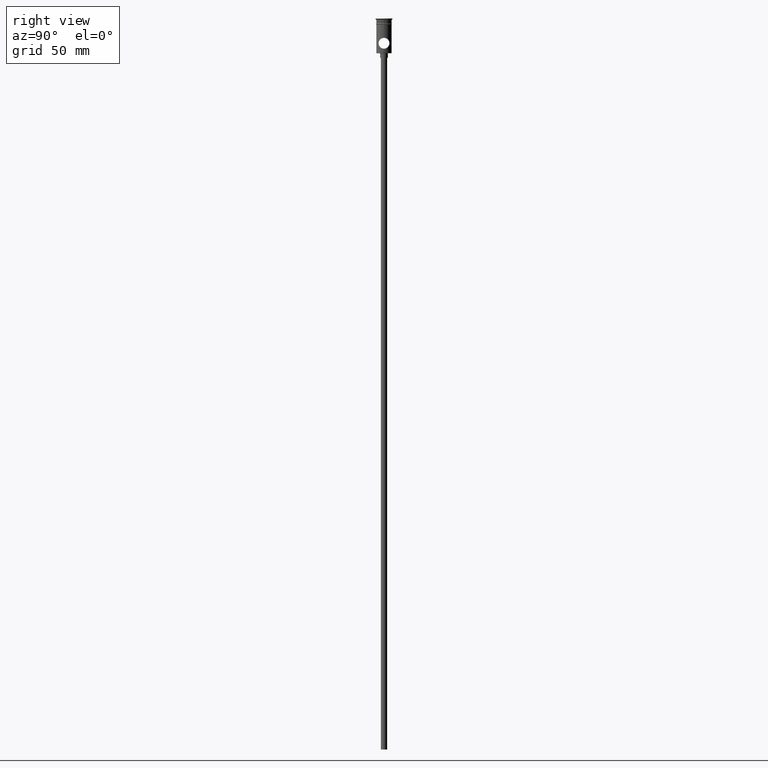
[diagram: clean part render]
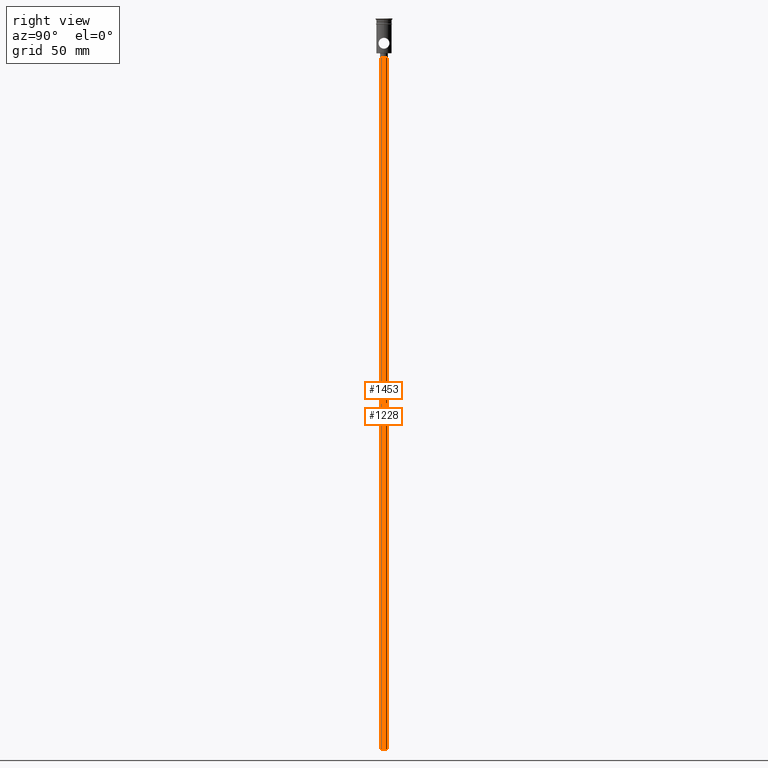
[diagram: same view with one multi-face feature highlighted, each face labeled with its STEP entity id]
A machine part, right view. The highlighted faces form ONE feature: a constant-radius fillet chain: 2 tangent blend faces with common blend radius 2 mm. The faces share edges in the B-rep.
Their STEP definitions:
[1] entity #1453 (Cylinder):
#8 = VERTEX_POINT ( 'NONE', #565 ) ;
#26 = VECTOR ( 'NONE', #1021, 1000.000000000000000 ) ;
#31 = VERTEX_POINT ( 'NONE', #1206 ) ;
#36 = DIRECTION ( 'NONE',  ( 0.000000000000000000, 0.000000000000000000, -1.000000000000000000 ) ) ;
#49 = AXIS2_PLACEMENT_3D ( 'NONE', #1036, #36, #227 ) ;
#64 = DIRECTION ( 'NONE',  ( -0.000000000000000000, -0.000000000000000000, 1.000000000000000000 ) ) ;
#75 = FACE_OUTER_BOUND ( 'NONE', #1200, .T. ) ;
#81 = LINE ( 'NONE', #1296, #549 ) ;
#82 = CARTESIAN_POINT ( 'NONE',  ( 2.000000000000000000, 0.000000000000000000, -472.5000000000000568 ) ) ;
#171 = EDGE_CURVE ( 'NONE', #1390, #8, #81, .T. ) ;
#190 = ORIENTED_EDGE ( 'NONE', *, *, #171, .T. ) ;
#227 = DIRECTION ( 'NONE',  ( -1.000000000000000000, 0.000000000000000000, 0.000000000000000000 ) ) ;
#327 = CYLINDRICAL_SURFACE ( 'NONE', #960, 2.000000000000000000 ) ;
#541 = CARTESIAN_POINT ( 'NONE',  ( 0.000000000000000000, 0.000000000000000000, -472.5000000000000568 ) ) ;
#549 = VECTOR ( 'NONE', #64, 1000.000000000000000 ) ;
#565 = CARTESIAN_POINT ( 'NONE',  ( 2.000000000000000000, 0.000000000000000000, -25.50000000000000000 ) ) ;
#653 = ORIENTED_EDGE ( 'NONE', *, *, #1017, .F. ) ;
#894 = ORIENTED_EDGE ( 'NONE', *, *, #919, .F. ) ;
#919 = EDGE_CURVE ( 'NONE', #1390, #31, #1223, .T. ) ;
#957 = ORIENTED_EDGE ( 'NONE', *, *, #1102, .T. ) ;
#960 = AXIS2_PLACEMENT_3D ( 'NONE', #1245, #1436, #982 ) ;
#982 = DIRECTION ( 'NONE',  ( 1.000000000000000000, 0.000000000000000000, 0.000000000000000000 ) ) ;
#985 = CARTESIAN_POINT ( 'NONE',  ( -2.000000000000000000, 2.449293598294706414E-16, -472.5000000000000568 ) ) ;
#1017 = EDGE_CURVE ( 'NONE', #31, #1231, #1186, .T. ) ;
#1021 = DIRECTION ( 'NONE',  ( -0.000000000000000000, -0.000000000000000000, 1.000000000000000000 ) ) ;
#1036 = CARTESIAN_POINT ( 'NONE',  ( 0.000000000000000000, 0.000000000000000000, -25.50000000000000000 ) ) ;
#1102 = EDGE_CURVE ( 'NONE', #8, #1231, #1365, .T. ) ;
#1118 = CARTESIAN_POINT ( 'NONE',  ( -2.000000000000000000, 2.449293598294706414E-16, -25.50000000000000000 ) ) ;
#1186 = LINE ( 'NONE', #985, #26 ) ;
#1200 = EDGE_LOOP ( 'NONE', ( #653, #894, #190, #957 ) ) ;
#1206 = CARTESIAN_POINT ( 'NONE',  ( -2.000000000000000000, 2.449293598294706414E-16, -472.5000000000000568 ) ) ;
#1223 = CIRCLE ( 'NONE', #1434, 2.000000000000000000 ) ;
#1231 = VERTEX_POINT ( 'NONE', #1118 ) ;
#1245 = CARTESIAN_POINT ( 'NONE',  ( 0.000000000000000000, 0.000000000000000000, -472.5000000000000568 ) ) ;
#1296 = CARTESIAN_POINT ( 'NONE',  ( 2.000000000000000000, 0.000000000000000000, -472.5000000000000568 ) ) ;
#1354 = DIRECTION ( 'NONE',  ( 0.000000000000000000, 0.000000000000000000, -1.000000000000000000 ) ) ;
#1365 = CIRCLE ( 'NONE', #49, 2.000000000000000000 ) ;
#1390 = VERTEX_POINT ( 'NONE', #82 ) ;
#1434 = AXIS2_PLACEMENT_3D ( 'NONE', #541, #1354, #1457 ) ;
#1436 = DIRECTION ( 'NONE',  ( -0.000000000000000000, -0.000000000000000000, 1.000000000000000000 ) ) ;
#1453 = ADVANCED_FACE ( 'NONE', ( #75 ), #327, .T. ) ;
#1457 = DIRECTION ( 'NONE',  ( -1.000000000000000000, 0.000000000000000000, 0.000000000000000000 ) ) ;
[2] entity #1228 (Cylinder):
#8 = VERTEX_POINT ( 'NONE', #565 ) ;
#26 = VECTOR ( 'NONE', #1021, 1000.000000000000000 ) ;
#31 = VERTEX_POINT ( 'NONE', #1206 ) ;
#39 = ORIENTED_EDGE ( 'NONE', *, *, #442, .F. ) ;
#64 = DIRECTION ( 'NONE',  ( -0.000000000000000000, -0.000000000000000000, 1.000000000000000000 ) ) ;
#81 = LINE ( 'NONE', #1296, #549 ) ;
#82 = CARTESIAN_POINT ( 'NONE',  ( 2.000000000000000000, 0.000000000000000000, -472.5000000000000568 ) ) ;
#100 = DIRECTION ( 'NONE',  ( 0.000000000000000000, 0.000000000000000000, -1.000000000000000000 ) ) ;
#106 = CARTESIAN_POINT ( 'NONE',  ( 0.000000000000000000, 0.000000000000000000, -472.5000000000000568 ) ) ;
#138 = CIRCLE ( 'NONE', #153, 2.000000000000000000 ) ;
#153 = AXIS2_PLACEMENT_3D ( 'NONE', #106, #100, #1236 ) ;
#171 = EDGE_CURVE ( 'NONE', #1390, #8, #81, .T. ) ;
#267 = AXIS2_PLACEMENT_3D ( 'NONE', #408, #1224, #639 ) ;
#408 = CARTESIAN_POINT ( 'NONE',  ( 0.000000000000000000, 0.000000000000000000, -472.5000000000000568 ) ) ;
#442 = EDGE_CURVE ( 'NONE', #31, #1390, #138, .T. ) ;
#456 = AXIS2_PLACEMENT_3D ( 'NONE', #1310, #696, #1405 ) ;
#509 = EDGE_LOOP ( 'NONE', ( #39, #773, #1013, #633 ) ) ;
#549 = VECTOR ( 'NONE', #64, 1000.000000000000000 ) ;
#565 = CARTESIAN_POINT ( 'NONE',  ( 2.000000000000000000, 0.000000000000000000, -25.50000000000000000 ) ) ;
#633 = ORIENTED_EDGE ( 'NONE', *, *, #171, .F. ) ;
#639 = DIRECTION ( 'NONE',  ( 1.000000000000000000, 0.000000000000000000, 0.000000000000000000 ) ) ;
#696 = DIRECTION ( 'NONE',  ( 0.000000000000000000, 0.000000000000000000, -1.000000000000000000 ) ) ;
#773 = ORIENTED_EDGE ( 'NONE', *, *, #1017, .T. ) ;
#932 = CIRCLE ( 'NONE', #456, 2.000000000000000000 ) ;
#985 = CARTESIAN_POINT ( 'NONE',  ( -2.000000000000000000, 2.449293598294706414E-16, -472.5000000000000568 ) ) ;
#1013 = ORIENTED_EDGE ( 'NONE', *, *, #1260, .T. ) ;
#1017 = EDGE_CURVE ( 'NONE', #31, #1231, #1186, .T. ) ;
#1021 = DIRECTION ( 'NONE',  ( -0.000000000000000000, -0.000000000000000000, 1.000000000000000000 ) ) ;
#1072 = FACE_OUTER_BOUND ( 'NONE', #509, .T. ) ;
#1118 = CARTESIAN_POINT ( 'NONE',  ( -2.000000000000000000, 2.449293598294706414E-16, -25.50000000000000000 ) ) ;
#1186 = LINE ( 'NONE', #985, #26 ) ;
#1206 = CARTESIAN_POINT ( 'NONE',  ( -2.000000000000000000, 2.449293598294706414E-16, -472.5000000000000568 ) ) ;
#1224 = DIRECTION ( 'NONE',  ( -0.000000000000000000, -0.000000000000000000, 1.000000000000000000 ) ) ;
#1228 = ADVANCED_FACE ( 'NONE', ( #1072 ), #1324, .T. ) ;
#1231 = VERTEX_POINT ( 'NONE', #1118 ) ;
#1236 = DIRECTION ( 'NONE',  ( -1.000000000000000000, 0.000000000000000000, 0.000000000000000000 ) ) ;
#1260 = EDGE_CURVE ( 'NONE', #1231, #8, #932, .T. ) ;
#1296 = CARTESIAN_POINT ( 'NONE',  ( 2.000000000000000000, 0.000000000000000000, -472.5000000000000568 ) ) ;
#1310 = CARTESIAN_POINT ( 'NONE',  ( 0.000000000000000000, 0.000000000000000000, -25.50000000000000000 ) ) ;
#1324 = CYLINDRICAL_SURFACE ( 'NONE', #267, 2.000000000000000000 ) ;
#1390 = VERTEX_POINT ( 'NONE', #82 ) ;
#1405 = DIRECTION ( 'NONE',  ( -1.000000000000000000, 0.000000000000000000, 0.000000000000000000 ) ) ;